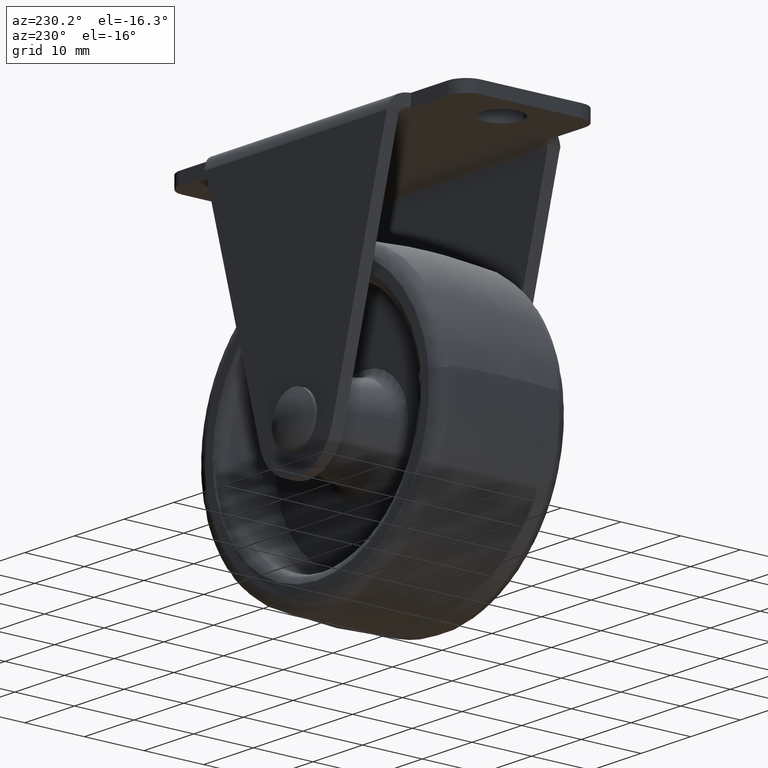
[diagram: clean part render]
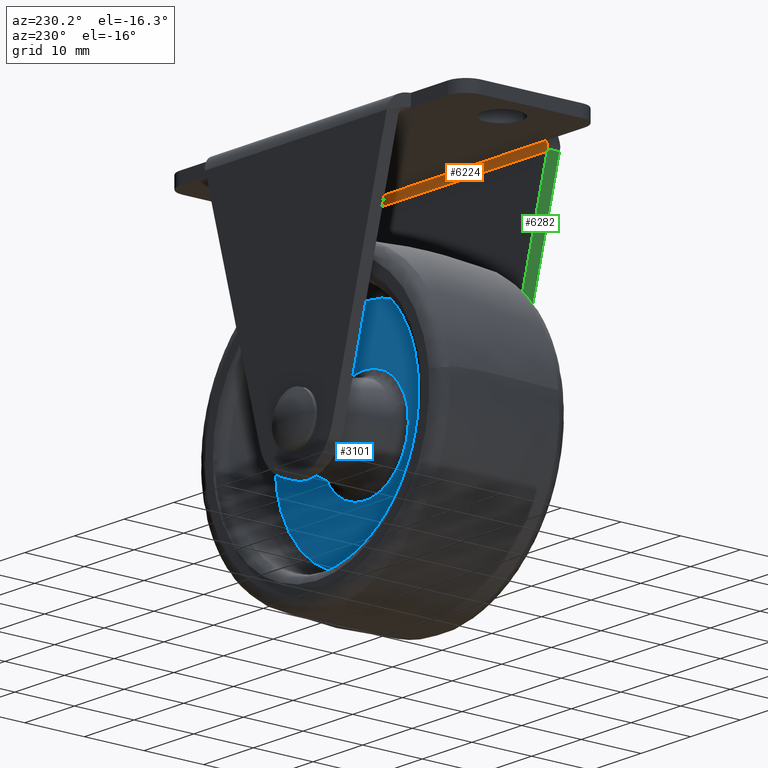
[diagram: same view with three faces highlighted in distinct colors, each labeled with its STEP entity id]
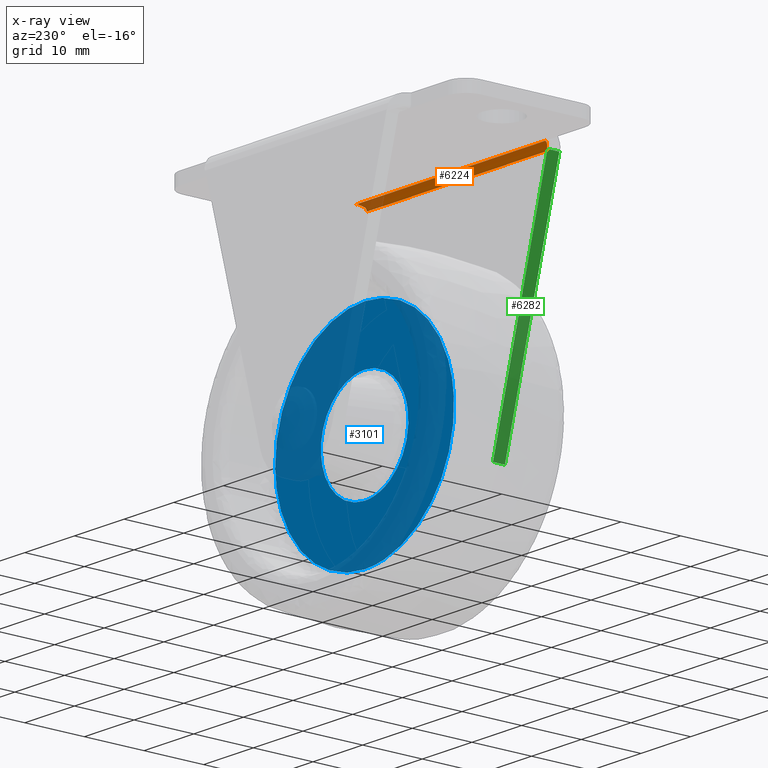
[diagram: x-ray of the same camera — body ghosted, the three highlighted faces saturated]
A machine part, auxiliary view with three faces highlighted in distinct colors.
The next image is the same camera in x-ray (body ghosted, the three faces saturated) — at least one of them is partly hidden behind the body in this view.
Their STEP definitions:

[orange] entity #6224 — the highlighted face is a freeform B-spline surface patch.
#4427=CARTESIAN_POINT('',(-18.926404772682201,-11.576025104863421,-2.002894096181100));
#4428=VERTEX_POINT('',#4427);
#4468=CARTESIAN_POINT('',(-19.284461912878651,-11.500000000000000,-2.0));
#4469=VERTEX_POINT('',#4468);
#4483=CARTESIAN_POINT('',(-18.926404772682201,-11.576025104863421,-2.002894096181100));
#4484=CARTESIAN_POINT('',(-18.957189162875309,-11.576860723387799,-2.002957808556784));
#4485=CARTESIAN_POINT('',(-18.986860186239230,-11.569541440659250,-2.002382692514202));
#4486=CARTESIAN_POINT('',(-19.045563527326639,-11.552103334444951,-2.001320097977387));
#4487=CARTESIAN_POINT('',(-19.074613576798502,-11.542072178484419,-2.000844834555509));
#4488=CARTESIAN_POINT('',(-19.133190491285291,-11.524069498093040,-2.000249144987421));
#4489=CARTESIAN_POINT('',(-19.162679328977148,-11.515933429868941,-2.000109005293315));
#4490=CARTESIAN_POINT('',(-19.222646587966121,-11.503954792992859,-1.999989882503534));
#4491=CARTESIAN_POINT('',(-19.253099092656541,-11.500000000000000,-2.0));
#4492=CARTESIAN_POINT('',(-19.284461912878601,-11.500000000000000,-2.0));
#4493=B_SPLINE_CURVE_WITH_KNOTS('',3,(#4483,#4484,#4485,#4486,#4487,#4488,#4489,#4490,#4491,#4492),.UNSPECIFIED.,.F.,.U.,(4,2,2,2,4),(0.0,0.250000000000000,0.500000000000000,0.750000000000000,1.0),.UNSPECIFIED.);
#4494=EDGE_CURVE('',#4428,#4469,#4493,.T.);
#4592=CARTESIAN_POINT('',(19.284461965403651,-11.500000000000000,-2.0));
#4593=VERTEX_POINT('',#4592);
#4594=CARTESIAN_POINT('',(18.926404867639199,-11.576025104971500,-2.002894096189340));
#4595=VERTEX_POINT('',#4594);
#4596=CARTESIAN_POINT('',(19.284461965403651,-11.500000000000000,-2.0));
#4597=CARTESIAN_POINT('',(19.253613383595599,-11.500000000000011,-2.0));
#4598=CARTESIAN_POINT('',(19.223408621712789,-11.503847554263359,-1.999989877724006));
#4599=CARTESIAN_POINT('',(19.163692958396918,-11.515687315001820,-2.000105527329864));
#4600=CARTESIAN_POINT('',(19.134175160737481,-11.523787447209919,-2.000242532925255));
#4601=CARTESIAN_POINT('',(19.075566294120129,-11.541759513407261,-2.000831856664523));
#4602=CARTESIAN_POINT('',(19.046521366088861,-11.551782094405940,-2.001303056790680));
#4603=CARTESIAN_POINT('',(18.987804917822341,-11.569296383758131,-2.002365306900992));
#4604=CARTESIAN_POINT('',(18.958157993558970,-11.576887018518811,-2.002959813449322));
#4605=CARTESIAN_POINT('',(18.926404867639199,-11.576025104971500,-2.002894096189340));
#4606=B_SPLINE_CURVE_WITH_KNOTS('',3,(#4596,#4597,#4598,#4599,#4600,#4601,#4602,#4603,#4604,#4605),.UNSPECIFIED.,.F.,.U.,(4,2,2,2,4),(0.0,0.250000000000000,0.500000000000000,0.750000000000000,1.0),.UNSPECIFIED.);
#4607=EDGE_CURVE('',#4593,#4595,#4606,.T.);
#4916=CARTESIAN_POINT('',(18.729368202012250,-11.936927863673100,-2.100503450842615));
#4917=VERTEX_POINT('',#4916);
#4918=CARTESIAN_POINT('',(18.926404867639189,-11.576025104971500,-2.002894096189340));
#4919=CARTESIAN_POINT('',(18.822816251977368,-11.765763482057212,-2.017360844385229));
#4920=CARTESIAN_POINT('',(18.729368202012271,-11.936927863673120,-2.100503450842615));
#4928=(BOUNDED_CURVE()B_SPLINE_CURVE(2,(#4918,#4919,#4920),.UNSPECIFIED.,.F.,.U.)CURVE()GEOMETRIC_REPRESENTATION_ITEM()QUASI_UNIFORM_CURVE()RATIONAL_B_SPLINE_CURVE((1.0,0.982372334281377,1.0))REPRESENTATION_ITEM(''));
#4929=EDGE_CURVE('',#4595,#4917,#4928,.T.);
#5412=CARTESIAN_POINT('',(-18.729368797742548,-11.936926267942900,-2.100502675722955));
#5413=VERTEX_POINT('',#5412);
#5414=CARTESIAN_POINT('',(-18.729368797742548,-11.936926267942900,-2.100502675722955));
#5415=CARTESIAN_POINT('',(-18.822816562472205,-11.765762565535599,-2.017360774483649));
#5416=CARTESIAN_POINT('',(-18.926404772682201,-11.576025104863421,-2.002894096181100));
#5424=(BOUNDED_CURVE()B_SPLINE_CURVE(2,(#5414,#5415,#5416),.UNSPECIFIED.,.F.,.U.)CURVE()GEOMETRIC_REPRESENTATION_ITEM()QUASI_UNIFORM_CURVE()RATIONAL_B_SPLINE_CURVE((1.0,0.982372500084329,1.0))REPRESENTATION_ITEM(''));
#5425=EDGE_CURVE('',#5413,#4428,#5424,.T.);
#5768=CARTESIAN_POINT('',(18.202673882767751,-12.463622182917620,-2.732731804007515));
#5769=VERTEX_POINT('',#5768);
#5770=CARTESIAN_POINT('',(18.729368202012271,-11.936927863673130,-2.100503450842618));
#5771=CARTESIAN_POINT('',(18.323322574913391,-12.342973490772014,-2.297738947263730));
#5772=CARTESIAN_POINT('',(18.202673882767751,-12.463622182917620,-2.732731804007515));
#5780=(BOUNDED_CURVE()B_SPLINE_CURVE(2,(#5770,#5771,#5772),.UNSPECIFIED.,.F.,.U.)CURVE()GEOMETRIC_REPRESENTATION_ITEM()QUASI_UNIFORM_CURVE()RATIONAL_B_SPLINE_CURVE((1.0,0.911438478934523,1.0))REPRESENTATION_ITEM(''));
#5781=EDGE_CURVE('',#4917,#5769,#5780,.T.);
#5945=CARTESIAN_POINT('',(-18.202672882767750,-12.463622182917620,-2.732731804007515));
#5946=VERTEX_POINT('',#5945);
#5947=CARTESIAN_POINT('',(-18.202672882767761,-12.463622182917630,-2.732731804007565));
#5948=CARTESIAN_POINT('',(-18.323321860292729,-12.342973205392681,-2.297737918342714));
#5949=CARTESIAN_POINT('',(-18.729368797742520,-11.936926267942880,-2.100502675722985));
#5957=(BOUNDED_CURVE()B_SPLINE_CURVE(2,(#5947,#5948,#5949),.UNSPECIFIED.,.F.,.U.)CURVE()GEOMETRIC_REPRESENTATION_ITEM()QUASI_UNIFORM_CURVE()RATIONAL_B_SPLINE_CURVE((1.0,0.911438113984902,1.0))REPRESENTATION_ITEM(''));
#5958=EDGE_CURVE('',#5946,#5413,#5957,.T.);
#6162=CARTESIAN_POINT('',(20.248685062360710,-11.456380612634661,-2.000951778418143));
#6163=CARTESIAN_POINT('',(-20.272790587259639,-11.456380612634661,-2.000951778418143));
#6164=CARTESIAN_POINT('',(20.248685062360707,-12.576060264459038,-1.952065509064016));
#6165=CARTESIAN_POINT('',(-20.272790587259635,-12.576060264459038,-1.952065509064016));
#6166=CARTESIAN_POINT('',(20.248685062360707,-12.497542913231923,-3.070058092043520));
#6167=CARTESIAN_POINT('',(-20.272790587259635,-12.497542913231923,-3.070058092043520));
#6175=(BOUNDED_SURFACE()B_SPLINE_SURFACE(1,2,((#6162,#6164,#6166),(#6163,#6165,#6167)),.UNSPECIFIED.,.F.,.F.,.U.)B_SPLINE_SURFACE_WITH_KNOTS((2,2),(3,3),(0.0,40.521475649620342),(0.0,0.994386594966985),.UNSPECIFIED.)GEOMETRIC_REPRESENTATION_ITEM()RATIONAL_B_SPLINE_SURFACE(((1.0,0.664513898535122,0.996233561259061),(1.0,0.664513898535122,0.996233561259061)))REPRESENTATION_ITEM('')SURFACE());
#6176=ORIENTED_EDGE('',*,*,#5958,.T.);
#6177=ORIENTED_EDGE('',*,*,#5425,.T.);
#6178=ORIENTED_EDGE('',*,*,#4494,.T.);
#6179=CARTESIAN_POINT('',(19.284461965403651,-11.500000000000000,-2.0));
#6180=CARTESIAN_POINT('',(-19.284461912878651,-11.500000000000000,-2.0));
#6181=QUASI_UNIFORM_CURVE('',1,(#6179,#6180),.UNSPECIFIED.,.F.,.U.);
#6182=EDGE_CURVE('',#4593,#4469,#6181,.T.);
#6183=ORIENTED_EDGE('',*,*,#6182,.F.);
#6184=ORIENTED_EDGE('',*,*,#4607,.T.);
#6185=ORIENTED_EDGE('',*,*,#4929,.T.);
#6186=ORIENTED_EDGE('',*,*,#5781,.T.);
#6187=CARTESIAN_POINT('',(18.128544945249100,-12.500000000000000,-3.0));
#6188=VERTEX_POINT('',#6187);
#6189=CARTESIAN_POINT('',(18.128544945249100,-12.500000000000000,-3.0));
#6190=CARTESIAN_POINT('',(18.166296065685366,-12.500000000000002,-2.863890213546391));
#6191=CARTESIAN_POINT('',(18.202673882767741,-12.463622182917620,-2.732731804007512));
#6199=(BOUNDED_CURVE()B_SPLINE_CURVE(2,(#6189,#6190,#6191),.UNSPECIFIED.,.F.,.U.)CURVE()GEOMETRIC_REPRESENTATION_ITEM()QUASI_UNIFORM_CURVE()RATIONAL_B_SPLINE_CURVE((1.0,0.990863810752445,1.0))REPRESENTATION_ITEM(''));
#6200=EDGE_CURVE('',#6188,#5769,#6199,.T.);
#6201=ORIENTED_EDGE('',*,*,#6200,.F.);
#6202=CARTESIAN_POINT('',(-18.128543945249149,-12.500000000000000,-3.0));
#6203=VERTEX_POINT('',#6202);
#6204=CARTESIAN_POINT('',(-18.128543945249149,-12.500000000000000,-3.0));
#6205=CARTESIAN_POINT('',(18.128544945249100,-12.500000000000000,-3.0));
#6206=QUASI_UNIFORM_CURVE('',1,(#6204,#6205),.UNSPECIFIED.,.F.,.U.);
#6207=EDGE_CURVE('',#6203,#6188,#6206,.T.);
#6208=ORIENTED_EDGE('',*,*,#6207,.F.);
#6209=CARTESIAN_POINT('',(-18.202672882767740,-12.463622182917620,-2.732731804007506));
#6210=CARTESIAN_POINT('',(-18.166295065685361,-12.499999999999998,-2.863890213546388));
#6211=CARTESIAN_POINT('',(-18.128543945249099,-12.500000000000000,-2.999999999999988));
#6219=(BOUNDED_CURVE()B_SPLINE_CURVE(2,(#6209,#6210,#6211),.UNSPECIFIED.,.F.,.U.)CURVE()GEOMETRIC_REPRESENTATION_ITEM()QUASI_UNIFORM_CURVE()RATIONAL_B_SPLINE_CURVE((1.0,0.990863810752336,1.0))REPRESENTATION_ITEM(''));
#6220=EDGE_CURVE('',#5946,#6203,#6219,.T.);
#6221=ORIENTED_EDGE('',*,*,#6220,.F.);
#6222=EDGE_LOOP('',(#6176,#6177,#6178,#6183,#6184,#6185,#6186,#6201,#6208,#6221));
#6223=FACE_OUTER_BOUND('',#6222,.T.);
#6224=ADVANCED_FACE('',(#6223),#6175,.F.);

[blue] entity #3101 — the highlighted face is a freeform B-spline surface patch.
#2478=CARTESIAN_POINT('',(-17.956182137332188,3.0,-38.744801471254299));
#2479=VERTEX_POINT('',#2478);
#2493=CARTESIAN_POINT('',(0.0,3.0,-57.999999999999993));
#2494=VERTEX_POINT('',#2493);
#2495=CARTESIAN_POINT('',(-17.956182137332192,3.000000000000000,-38.744801471254299));
#2496=CARTESIAN_POINT('',(-18.000000000000004,3.000000000000000,-39.371635914440759));
#2497=CARTESIAN_POINT('',(-18.0,3.0,-40.0));
#2498=CARTESIAN_POINT('',(-18.000000000000007,3.000000000000000,-57.999999999999993));
#2499=CARTESIAN_POINT('',(0.0,3.0,-57.999999999999993));
#2507=(BOUNDED_CURVE()B_SPLINE_CURVE(2,(#2495,#2496,#2497,#2498,#2499),.UNSPECIFIED.,.F.,.U.)B_SPLINE_CURVE_WITH_KNOTS((3,2,3),(0.737833686538676,0.750000000000000,1.0),.UNSPECIFIED.)CURVE()GEOMETRIC_REPRESENTATION_ITEM()RATIONAL_B_SPLINE_CURVE((0.972879876394557,0.985746277156878,1.0,0.707106781186547,1.0))REPRESENTATION_ITEM(''));
#2508=EDGE_CURVE('',#2479,#2494,#2507,.T.);
#2510=CARTESIAN_POINT('',(17.998578803877169,3.0,-40.226188717839527));
#2511=VERTEX_POINT('',#2510);
#2512=CARTESIAN_POINT('',(0.0,3.0,-57.999999999999993));
#2513=CARTESIAN_POINT('',(17.775214738655517,3.0,-57.999999999999993));
#2514=CARTESIAN_POINT('',(17.998578803877173,3.000000000000000,-40.226188717839534));
#2522=(BOUNDED_CURVE()B_SPLINE_CURVE(2,(#2512,#2513,#2514),.UNSPECIFIED.,.F.,.U.)B_SPLINE_CURVE_WITH_KNOTS((3,3),(0.0,0.247784295924932),.UNSPECIFIED.)CURVE()GEOMETRIC_REPRESENTATION_ITEM()RATIONAL_B_SPLINE_CURVE((1.0,0.709702639980486,0.994854295651387))REPRESENTATION_ITEM(''));
#2523=EDGE_CURVE('',#2494,#2511,#2522,.T.);
#2570=CARTESIAN_POINT('',(0.0,3.0,-22.0));
#2571=VERTEX_POINT('',#2570);
#2572=CARTESIAN_POINT('',(17.998578803877177,3.000000000000000,-40.226188717839541));
#2573=CARTESIAN_POINT('',(18.0,3.0,-40.113098823690052));
#2574=CARTESIAN_POINT('',(18.0,3.0,-40.0));
#2575=CARTESIAN_POINT('',(18.000000000000007,3.000000000000000,-22.000000000000007));
#2576=CARTESIAN_POINT('',(0.0,3.0,-22.0));
#2584=(BOUNDED_CURVE()B_SPLINE_CURVE(2,(#2572,#2573,#2574,#2575,#2576),.UNSPECIFIED.,.F.,.U.)B_SPLINE_CURVE_WITH_KNOTS((3,2,3),(0.247784295924932,0.250000000000000,0.500000000000000),.UNSPECIFIED.)CURVE()GEOMETRIC_REPRESENTATION_ITEM()RATIONAL_B_SPLINE_CURVE((0.994854295651386,0.997404141206061,1.0,0.707106781186547,1.0))REPRESENTATION_ITEM(''));
#2585=EDGE_CURVE('',#2511,#2571,#2584,.T.);
#2587=CARTESIAN_POINT('',(0.0,3.0,-22.0));
#2588=CARTESIAN_POINT('',(-16.785663251145586,3.0,-22.000000000000007));
#2589=CARTESIAN_POINT('',(-17.956182137332188,3.000000000000000,-38.744801471254299));
#2597=(BOUNDED_CURVE()B_SPLINE_CURVE(2,(#2587,#2588,#2589),.UNSPECIFIED.,.F.,.U.)B_SPLINE_CURVE_WITH_KNOTS((3,3),(0.500000000000000,0.737833686538675),.UNSPECIFIED.)CURVE()GEOMETRIC_REPRESENTATION_ITEM()RATIONAL_B_SPLINE_CURVE((1.0,0.721360504029671,0.972879876394556))REPRESENTATION_ITEM(''));
#2598=EDGE_CURVE('',#2571,#2479,#2597,.T.);
#2639=CARTESIAN_POINT('',(-3.132907802067632,3.0,-48.225049151748600));
#2640=VERTEX_POINT('',#2639);
#2641=CARTESIAN_POINT('',(0.0,3.0,-48.801508102108173));
#2642=VERTEX_POINT('',#2641);
#2643=CARTESIAN_POINT('',(-3.132907802067633,3.000000000000000,-48.225049151748600));
#2644=CARTESIAN_POINT('',(-1.619488484720976,3.000000000000000,-48.801508102108158));
#2645=CARTESIAN_POINT('',(0.0,3.0,-48.801508102108173));
#2653=(BOUNDED_CURVE()B_SPLINE_CURVE(2,(#2643,#2644,#2645),.UNSPECIFIED.,.F.,.U.)B_SPLINE_CURVE_WITH_KNOTS((3,3),(0.939552769329765,1.0),.UNSPECIFIED.)CURVE()GEOMETRIC_REPRESENTATION_ITEM()RATIONAL_B_SPLINE_CURVE((0.892609506581476,0.929181664162542,1.0))REPRESENTATION_ITEM(''));
#2654=EDGE_CURVE('',#2640,#2642,#2653,.T.);
#2674=CARTESIAN_POINT('',(-8.645609195784804,3.0,-38.350761841460212));
#2675=VERTEX_POINT('',#2674);
#2689=CARTESIAN_POINT('',(0.0,3.0,-31.198491897891842));
#2690=VERTEX_POINT('',#2689);
#2691=CARTESIAN_POINT('',(0.0,3.0,-31.198491897891842));
#2692=CARTESIAN_POINT('',(-7.281240735042140,3.000000000000000,-31.198491897891838));
#2693=CARTESIAN_POINT('',(-8.645609195784804,3.000000000000000,-38.350761841460219));
#2701=(BOUNDED_CURVE()B_SPLINE_CURVE(2,(#2691,#2692,#2693),.UNSPECIFIED.,.F.,.U.)B_SPLINE_CURVE_WITH_KNOTS((3,3),(0.500000000000000,0.717838633738647),.UNSPECIFIED.)CURVE()GEOMETRIC_REPRESENTATION_ITEM()RATIONAL_B_SPLINE_CURVE((1.0,0.744786165529451,0.934335795157028))REPRESENTATION_ITEM(''));
#2702=EDGE_CURVE('',#2690,#2675,#2701,.T.);
#2704=CARTESIAN_POINT('',(0.0,3.0,-48.801508102108173));
#2705=CARTESIAN_POINT('',(8.801508102108159,3.0,-48.801508102108173));
#2706=CARTESIAN_POINT('',(8.801508102108159,3.0,-40.0));
#2707=CARTESIAN_POINT('',(8.801508102108159,3.0,-31.198491897891849));
#2708=CARTESIAN_POINT('',(0.0,3.0,-31.198491897891842));
#2716=(BOUNDED_CURVE()B_SPLINE_CURVE(2,(#2704,#2705,#2706,#2707,#2708),.UNSPECIFIED.,.F.,.U.)B_SPLINE_CURVE_WITH_KNOTS((3,2,3),(0.0,0.250000000000000,0.500000000000000),.UNSPECIFIED.)CURVE()GEOMETRIC_REPRESENTATION_ITEM()RATIONAL_B_SPLINE_CURVE((1.0,0.707106781186548,1.0,0.707106781186548,1.0))REPRESENTATION_ITEM(''));
#2717=EDGE_CURVE('',#2642,#2690,#2716,.T.);
#2739=CARTESIAN_POINT('',(-8.645609195784806,3.0,-38.350761841460212));
#2740=CARTESIAN_POINT('',(-8.801508102108159,3.000000000000000,-39.168012527952087));
#2741=CARTESIAN_POINT('',(-8.801508102108159,3.0,-40.0));
#2742=CARTESIAN_POINT('',(-8.801508102108159,3.0,-46.065888547725507));
#2743=CARTESIAN_POINT('',(-3.132907802067632,2.999999999999999,-48.225049151748600));
#2751=(BOUNDED_CURVE()B_SPLINE_CURVE(2,(#2739,#2740,#2741,#2742,#2743),.UNSPECIFIED.,.F.,.U.)B_SPLINE_CURVE_WITH_KNOTS((3,2,3),(0.717838633738648,0.750000000000000,0.939552769329765),.UNSPECIFIED.)CURVE()GEOMETRIC_REPRESENTATION_ITEM()RATIONAL_B_SPLINE_CURVE((0.934335795157028,0.962320615657096,1.0,0.777925117024005,0.892609506581477))REPRESENTATION_ITEM(''));
#2752=EDGE_CURVE('',#2675,#2640,#2751,.T.);
#3084=CARTESIAN_POINT('',(-19.795974098336782,3.0,-20.201800069774990));
#3085=CARTESIAN_POINT('',(-19.795974098336782,3.0,-59.798200895820258));
#3086=CARTESIAN_POINT('',(19.796606197033729,3.0,-20.201800069774990));
#3087=CARTESIAN_POINT('',(19.796606197033729,3.0,-59.798200895820258));
#3088=B_SPLINE_SURFACE_WITH_KNOTS('',1,1,((#3084,#3086),(#3085,#3087)),.UNSPECIFIED.,.F.,.F.,.U.,(2,2),(2,2),(0.0,39.596400826045269),(0.0,39.592580295370503),.UNSPECIFIED.);
#3089=ORIENTED_EDGE('',*,*,#2508,.F.);
#3090=ORIENTED_EDGE('',*,*,#2598,.F.);
#3091=ORIENTED_EDGE('',*,*,#2585,.F.);
#3092=ORIENTED_EDGE('',*,*,#2523,.F.);
#3093=EDGE_LOOP('',(#3089,#3090,#3091,#3092));
#3094=FACE_OUTER_BOUND('',#3093,.T.);
#3095=ORIENTED_EDGE('',*,*,#2717,.T.);
#3096=ORIENTED_EDGE('',*,*,#2702,.T.);
#3097=ORIENTED_EDGE('',*,*,#2752,.T.);
#3098=ORIENTED_EDGE('',*,*,#2654,.T.);
#3099=EDGE_LOOP('',(#3095,#3096,#3097,#3098));
#3100=FACE_BOUND('',#3099,.T.);
#3101=ADVANCED_FACE('',(#3094,#3100),#3088,.F.);

[green] entity #6282 — the highlighted face is a freeform B-spline surface patch.
#5945=CARTESIAN_POINT('',(-18.202672882767750,-12.463622182917620,-2.732731804007515));
#5946=VERTEX_POINT('',#5945);
#5960=CARTESIAN_POINT('',(-18.202672882767800,-14.500000000000000,-2.732731804007570));
#5961=VERTEX_POINT('',#5960);
#5962=CARTESIAN_POINT('',(-18.202672882767800,-14.500000000000000,-2.732731804007570));
#5963=CARTESIAN_POINT('',(-18.202672882767750,-12.463622182917620,-2.732731804007515));
#5964=QUASI_UNIFORM_CURVE('',1,(#5962,#5963),.UNSPECIFIED.,.F.,.U.);
#5965=EDGE_CURVE('',#5961,#5946,#5964,.T.);
#6202=CARTESIAN_POINT('',(-18.128543945249149,-12.500000000000000,-3.0));
#6203=VERTEX_POINT('',#6202);
#6209=CARTESIAN_POINT('',(-18.202672882767740,-12.463622182917620,-2.732731804007506));
#6210=CARTESIAN_POINT('',(-18.166295065685361,-12.499999999999998,-2.863890213546388));
#6211=CARTESIAN_POINT('',(-18.128543945249099,-12.500000000000000,-2.999999999999988));
#6219=(BOUNDED_CURVE()B_SPLINE_CURVE(2,(#6209,#6210,#6211),.UNSPECIFIED.,.F.,.U.)CURVE()GEOMETRIC_REPRESENTATION_ITEM()QUASI_UNIFORM_CURVE()RATIONAL_B_SPLINE_CURVE((1.0,0.990863810752336,1.0))REPRESENTATION_ITEM(''));
#6220=EDGE_CURVE('',#5946,#6203,#6219,.T.);
#6254=CARTESIAN_POINT('',(-18.750899397476619,-14.601717068016370,-0.756128381833322));
#6255=CARTESIAN_POINT('',(-6.678939847816719,-14.601717068016370,-44.280977906629403));
#6256=CARTESIAN_POINT('',(-18.750899397476619,-12.361905060281339,-0.756128381833322));
#6257=CARTESIAN_POINT('',(-6.678939847816719,-12.361905060281339,-44.280977906629403));
#6258=B_SPLINE_SURFACE_WITH_KNOTS('',1,1,((#6254,#6256),(#6255,#6257)),.UNSPECIFIED.,.F.,.F.,.U.,(2,2),(2,2),(0.0,45.167961361176857),(0.0,2.239812007735031),.UNSPECIFIED.);
#6259=CARTESIAN_POINT('',(-7.227165871882169,-14.500000000000000,-42.304376253445547));
#6260=VERTEX_POINT('',#6259);
#6261=CARTESIAN_POINT('',(-7.227165871882169,-14.500000000000000,-42.304376253445547));
#6262=CARTESIAN_POINT('',(-18.202672882767800,-14.500000000000000,-2.732731804007570));
#6263=QUASI_UNIFORM_CURVE('',1,(#6261,#6262),.UNSPECIFIED.,.F.,.U.);
#6264=EDGE_CURVE('',#6260,#5961,#6263,.T.);
#6265=ORIENTED_EDGE('',*,*,#6264,.T.);
#6266=ORIENTED_EDGE('',*,*,#5965,.T.);
#6267=ORIENTED_EDGE('',*,*,#6220,.T.);
#6268=CARTESIAN_POINT('',(-7.227165871882169,-12.500000000000000,-42.304376253445547));
#6269=VERTEX_POINT('',#6268);
#6270=CARTESIAN_POINT('',(-18.128543945249149,-12.500000000000000,-3.0));
#6271=CARTESIAN_POINT('',(-7.227165871882169,-12.500000000000000,-42.304376253445547));
#6272=QUASI_UNIFORM_CURVE('',1,(#6270,#6271),.UNSPECIFIED.,.F.,.U.);
#6273=EDGE_CURVE('',#6203,#6269,#6272,.T.);
#6274=ORIENTED_EDGE('',*,*,#6273,.T.);
#6275=CARTESIAN_POINT('',(-7.227165871882169,-14.500000000000000,-42.304376253445547));
#6276=CARTESIAN_POINT('',(-7.227165871882169,-12.500000000000000,-42.304376253445547));
#6277=QUASI_UNIFORM_CURVE('',1,(#6275,#6276),.UNSPECIFIED.,.F.,.U.);
#6278=EDGE_CURVE('',#6260,#6269,#6277,.T.);
#6279=ORIENTED_EDGE('',*,*,#6278,.F.);
#6280=EDGE_LOOP('',(#6265,#6266,#6267,#6274,#6279));
#6281=FACE_OUTER_BOUND('',#6280,.T.);
#6282=ADVANCED_FACE('',(#6281),#6258,.F.);